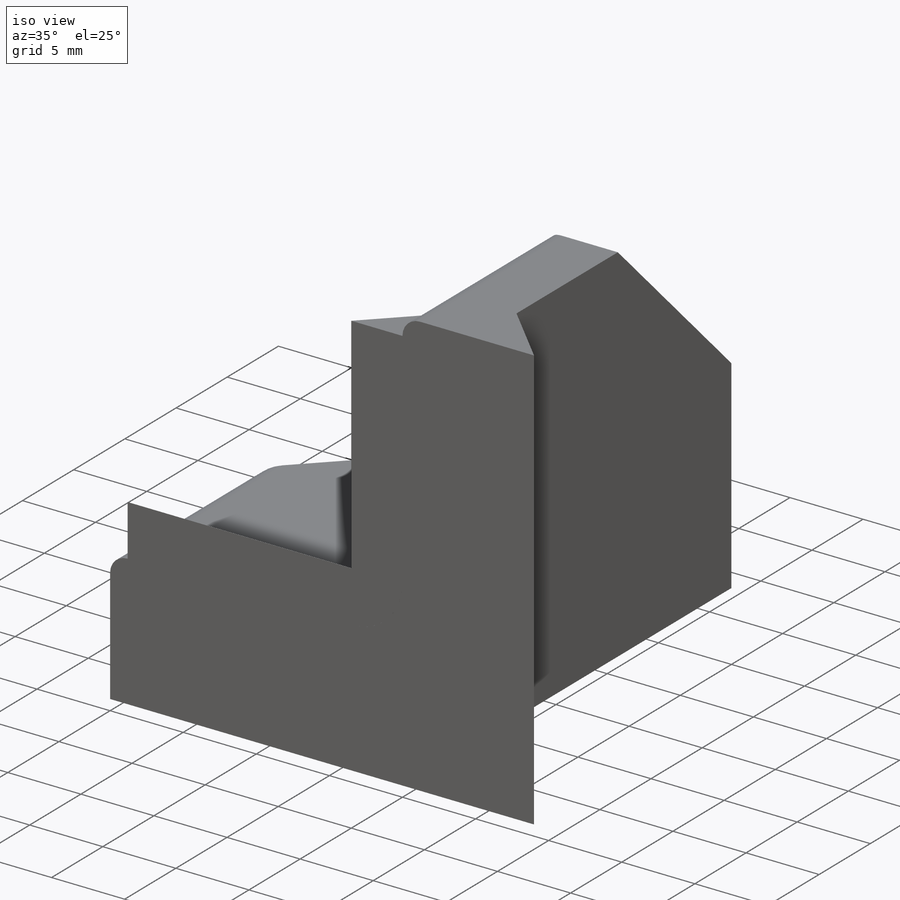
[diagram: iso view]
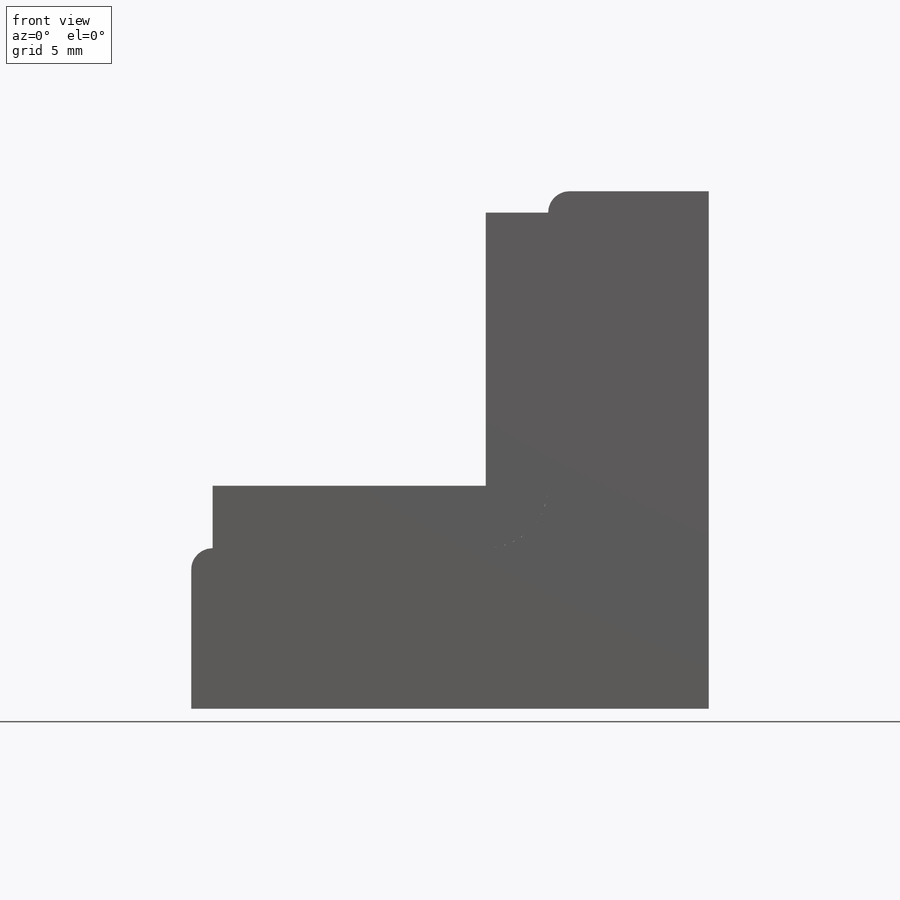
[diagram: front view]
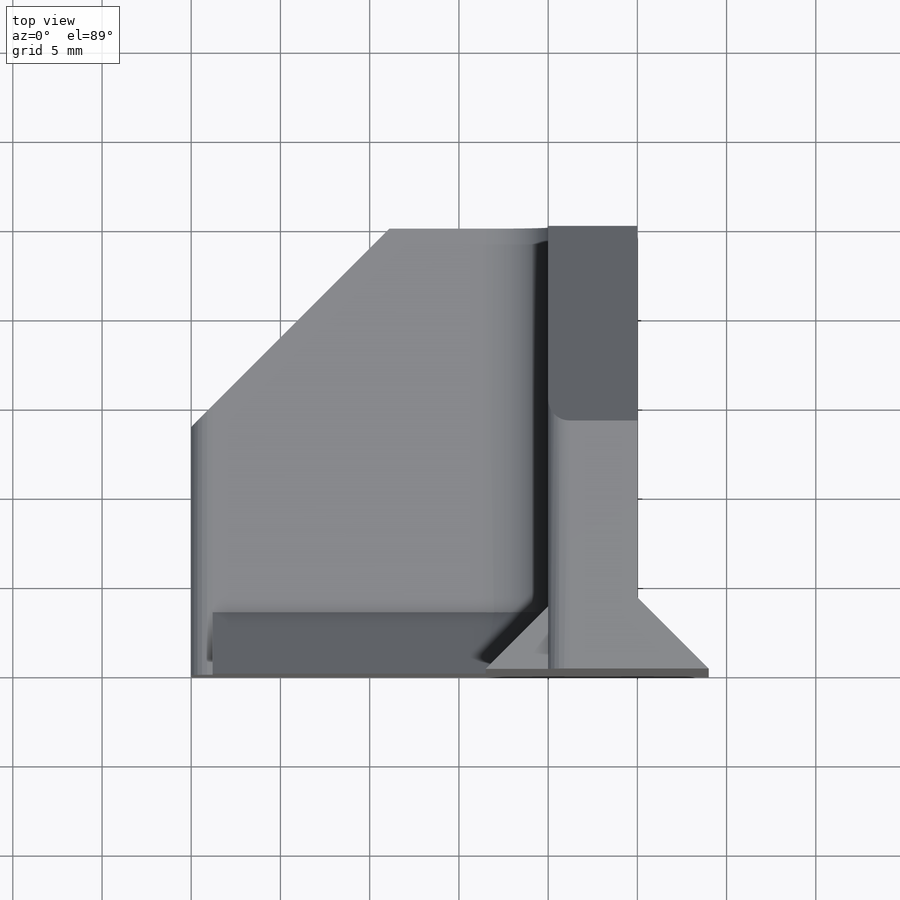
[diagram: top view]
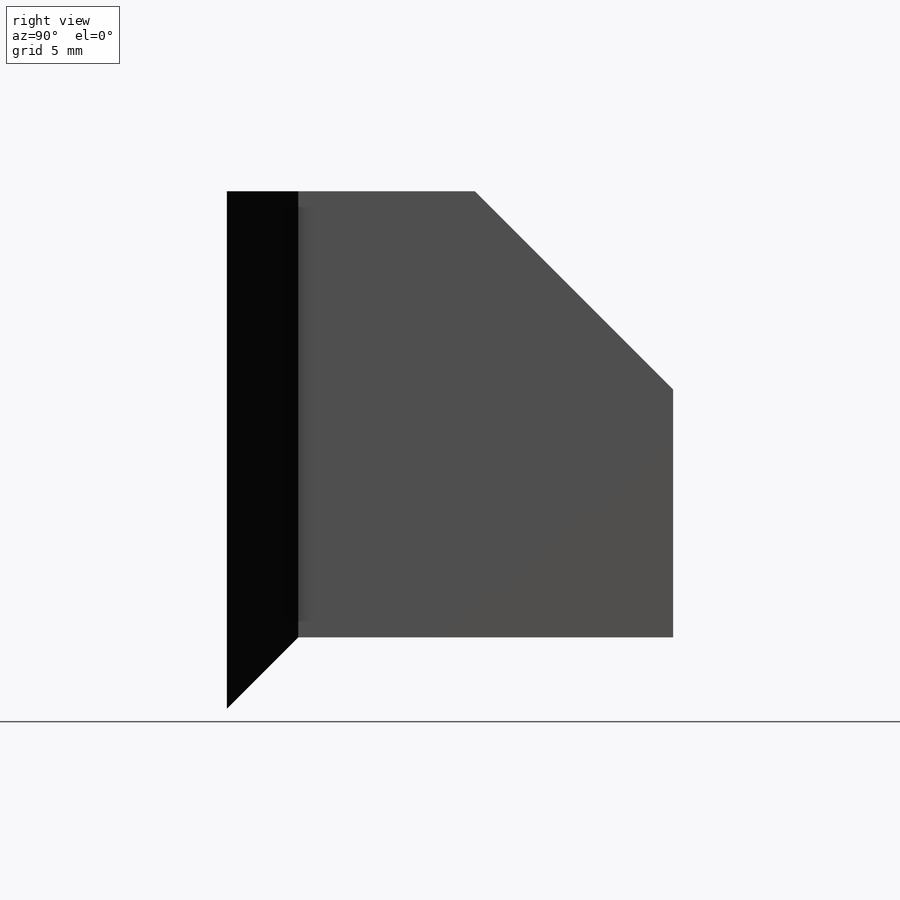
[diagram: right view]
SOLIDWORKS PART (.sldprt)
format: sldprt  version: not decoded by parser v0  size: 204,288 bytes
history: native  units: mm
features: sketch x6, plane x4, chamfer x3, sweep x2, material x1 + 4 further entries (+9 scaffold rows collapsed)
feature tree (29):
  scaffold x9  (default folders/planes/origin — collapsed)
  material  "Сталь 3кп ГОСТ 535-88"
  plane  "Спереди"
  plane  "Сверху"
  plane  "Слева"
  "Начало координат"
  "PTricksFreeParameters"
  "PTricksEqu"
  "PTricksFreeParameters"
  sketch  "Эскиз1"  dims[D1=25.0mm]
  plane  "Плоскость1"
  sketch  "Sketch1"  dims[c1.D2=3.175mm c1.R=3.5mm c1.Radius_2=3.175mm c1.r3=3.0mm c1.r1=1.0mm c1.r2=1.0mm c2.r3=1.0mm c2._r=1.2mm c2.V_leg=50.8mm c2.H_leg=50.8mm c2.Thickness=3.175mm c2.S2=3.0mm c2.D3=46.0375mm c3.V_leg=25.4mm c3.H_leg=25.0mm c3.Flat_wid=~0.00508mm c3.D3=6.35mm c3.D2=0.005mm c4.D3=20.0mm c4.B=25.0mm c4.D5=~19.488932mm c4.D6=~5.434439mm c4.D1=2.5mm c5.D3=~21.485338mm c5.Х0=8.0mm c5.S2=22.0mm c5.D1=22.0mm c5.D2=90.0deg c5.S=3.0mm c6.S=100.0mm c6.D1=90.0deg c7.S=8.0mm c7.D1=8.0mm c7.D2=8.0mm c8.D1=8.0mm c8.S=8.0mm c8.t=5.0mm c8.у0=8.0mm c8.D2=3.0mm]
  sketch  "Эскиз3"  dims[D1=13.9mm D2=~15.697771mm D3=11.1mm]
  chamfer  "Фаска1"  Distance=11.1mm Angle=45deg
  sketch  "Трехмерный эскиз1"  dims[D1=3.5mm]
  sketch  "Трехмерный эскиз2"
  sweep  "По траектории3"
  chamfer  "Св шов внутр"  [1 undecoded]
  sketch  "Эскиз4"  dims[D1=4.0mm]
  sweep  "По траектории4"
  chamfer  "Св шов внешн"  [1 undecoded]
decode coverage: 6 of 11 modeling features carry decoded parameters; 4 rows unclassified (native names shown)
note: ~ marks probable driven/reference dimensions
note: 2 parameter values undecoded
note: suppression state not decoded; provenance and decode notes live in map.json
